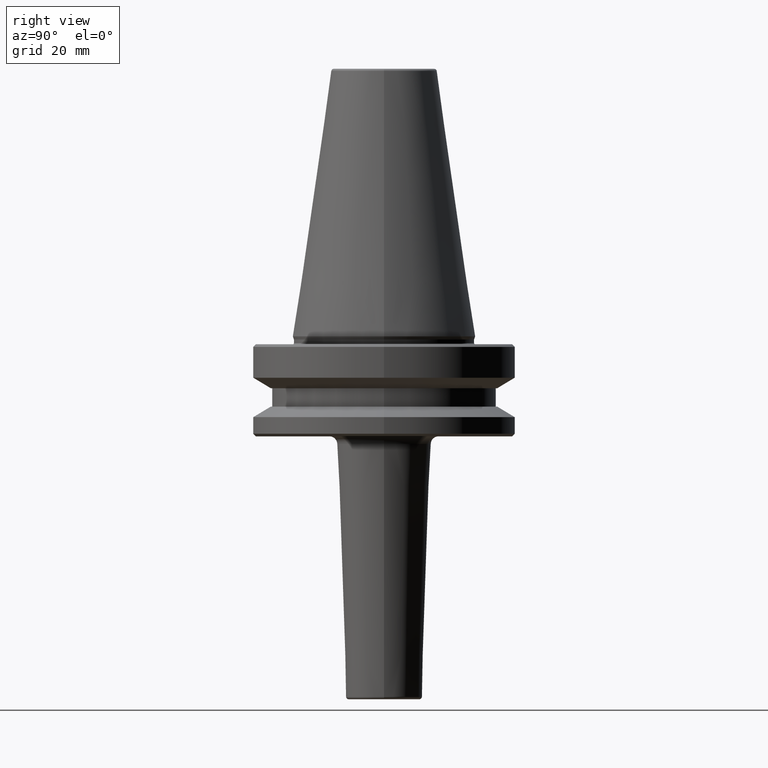
[diagram: clean part render]
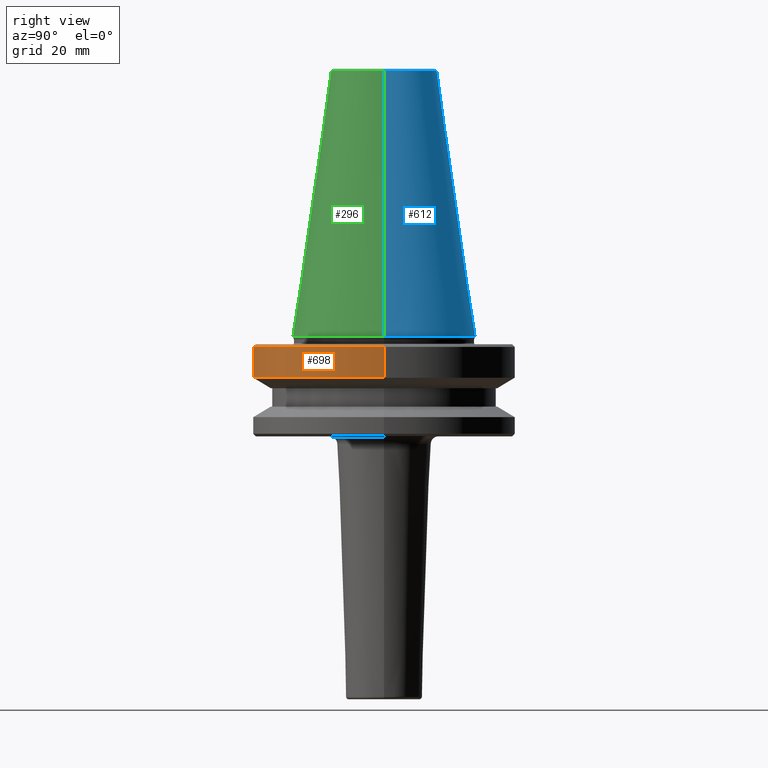
[diagram: same view with three faces highlighted in distinct colors, each labeled with its STEP entity id]
A machine part, right view with three faces highlighted in distinct colors.
Their STEP definitions:

[orange] entity #698 — the highlighted cylindrical surface (partial cylindrical patch) has radius 50 mm, axis along (-0, -0, 1).
#45 = EDGE_CURVE ( 'NONE', #307, #824, #472, .T. ) ;
#54 = CYLINDRICAL_SURFACE ( 'NONE', #357, 50.00000000000000000 ) ;
#61 = CARTESIAN_POINT ( 'NONE',  ( 50.00000000000000000, 0.0000000000000000000, -15.70022000322675400 ) ) ;
#76 = CARTESIAN_POINT ( 'NONE',  ( 0.0000000000000000000, 0.0000000000000000000, 124.5046326327850600 ) ) ;
#85 = ORIENTED_EDGE ( 'NONE', *, *, #708, .F. ) ;
#134 = LINE ( 'NONE', #798, #679 ) ;
#156 = CARTESIAN_POINT ( 'NONE',  ( -50.00000000000000000, 6.123233995736766900E-015, -15.70022000322675400 ) ) ;
#208 = EDGE_CURVE ( 'NONE', #647, #331, #979, .T. ) ;
#219 = DIRECTION ( 'NONE',  ( -0.0000000000000000000, -0.0000000000000000000, 1.000000000000000000 ) ) ;
#227 = FACE_OUTER_BOUND ( 'NONE', #931, .T. ) ;
#289 = ORIENTED_EDGE ( 'NONE', *, *, #45, .T. ) ;
#299 = LINE ( 'NONE', #753, #910 ) ;
#307 = VERTEX_POINT ( 'NONE', #156 ) ;
#318 = CARTESIAN_POINT ( 'NONE',  ( 0.0000000000000000000, 0.0000000000000000000, -3.999999999999989800 ) ) ;
#319 = DIRECTION ( 'NONE',  ( -0.0000000000000000000, -0.0000000000000000000, 1.000000000000000000 ) ) ;
#331 = VERTEX_POINT ( 'NONE', #744 ) ;
#357 = AXIS2_PLACEMENT_3D ( 'NONE', #76, #942, #771 ) ;
#417 = ORIENTED_EDGE ( 'NONE', *, *, #963, .T. ) ;
#472 = CIRCLE ( 'NONE', #562, 50.00000000000000000 ) ;
#475 = DIRECTION ( 'NONE',  ( -0.0000000000000000000, -0.0000000000000000000, 1.000000000000000000 ) ) ;
#545 = AXIS2_PLACEMENT_3D ( 'NONE', #318, #475, #1003 ) ;
#562 = AXIS2_PLACEMENT_3D ( 'NONE', #857, #319, #748 ) ;
#602 = CARTESIAN_POINT ( 'NONE',  ( -50.00000000000000000, 6.123233995736766100E-015, -3.999999999999989800 ) ) ;
#647 = VERTEX_POINT ( 'NONE', #602 ) ;
#679 = VECTOR ( 'NONE', #953, 1000.000000000000000 ) ;
#698 = ADVANCED_FACE ( 'NONE', ( #227 ), #54, .T. ) ;
#708 = EDGE_CURVE ( 'NONE', #307, #647, #299, .T. ) ;
#744 = CARTESIAN_POINT ( 'NONE',  ( 50.00000000000000000, 0.0000000000000000000, -3.999999999999989800 ) ) ;
#748 = DIRECTION ( 'NONE',  ( 1.000000000000000000, 0.0000000000000000000, 0.0000000000000000000 ) ) ;
#753 = CARTESIAN_POINT ( 'NONE',  ( -50.00000000000000000, 6.123233995736766100E-015, 124.5046326327850600 ) ) ;
#771 = DIRECTION ( 'NONE',  ( 1.000000000000000000, 0.0000000000000000000, 0.0000000000000000000 ) ) ;
#798 = CARTESIAN_POINT ( 'NONE',  ( 50.00000000000000000, 0.0000000000000000000, 124.5046326327850600 ) ) ;
#824 = VERTEX_POINT ( 'NONE', #61 ) ;
#857 = CARTESIAN_POINT ( 'NONE',  ( 0.0000000000000000000, 0.0000000000000000000, -15.70022000322675400 ) ) ;
#879 = ORIENTED_EDGE ( 'NONE', *, *, #208, .F. ) ;
#910 = VECTOR ( 'NONE', #219, 1000.000000000000000 ) ;
#931 = EDGE_LOOP ( 'NONE', ( #85, #289, #417, #879 ) ) ;
#942 = DIRECTION ( 'NONE',  ( -0.0000000000000000000, -0.0000000000000000000, 1.000000000000000000 ) ) ;
#953 = DIRECTION ( 'NONE',  ( -0.0000000000000000000, -0.0000000000000000000, 1.000000000000000000 ) ) ;
#963 = EDGE_CURVE ( 'NONE', #824, #331, #134, .T. ) ;
#979 = CIRCLE ( 'NONE', #545, 50.00000000000000000 ) ;
#1003 = DIRECTION ( 'NONE',  ( 1.000000000000000000, 0.0000000000000000000, 0.0000000000000000000 ) ) ;

[blue] entity #612 — the highlighted conical surface has half-angle 8.297 deg.
#9 = DIRECTION ( 'NONE',  ( 0.1443082272673000800, 1.767266086135278300E-017, -0.9895327864921754600 ) ) ;
#17 = EDGE_CURVE ( 'NONE', #168, #212, #304, .T. ) ;
#18 = AXIS2_PLACEMENT_3D ( 'NONE', #223, #674, #146 ) ;
#20 = LINE ( 'NONE', #245, #936 ) ;
#68 = EDGE_CURVE ( 'NONE', #438, #168, #355, .T. ) ;
#79 = ORIENTED_EDGE ( 'NONE', *, *, #810, .T. ) ;
#105 = DIRECTION ( 'NONE',  ( 1.000000000000000000, 0.0000000000000000000, 0.0000000000000000000 ) ) ;
#146 = DIRECTION ( 'NONE',  ( 1.000000000000000000, 0.0000000000000000000, 0.0000000000000000000 ) ) ;
#168 = VERTEX_POINT ( 'NONE', #379 ) ;
#202 = CARTESIAN_POINT ( 'NONE',  ( -34.92499999999999700, 4.277078946022131700E-015, 0.0000000000000000000 ) ) ;
#212 = VERTEX_POINT ( 'NONE', #202 ) ;
#215 = FACE_OUTER_BOUND ( 'NONE', #247, .T. ) ;
#223 = CARTESIAN_POINT ( 'NONE',  ( 0.0000000000000000000, 0.0000000000000000000, 0.0000000000000000000 ) ) ;
#245 = CARTESIAN_POINT ( 'NONE',  ( 34.92499999999999700, 4.277078946022130900E-015, 0.0000000000000000000 ) ) ;
#247 = EDGE_LOOP ( 'NONE', ( #998, #425, #79, #367 ) ) ;
#295 = CARTESIAN_POINT ( 'NONE',  ( 0.0000000000000000000, 0.0000000000000000000, 100.9443082272672900 ) ) ;
#304 = LINE ( 'NONE', #536, #352 ) ;
#351 = CARTESIAN_POINT ( 'NONE',  ( 34.92499999999999700, 0.0000000000000000000, 0.0000000000000000000 ) ) ;
#352 = VECTOR ( 'NONE', #834, 1000.000000000000000 ) ;
#355 = CIRCLE ( 'NONE', #819, 20.20381605152244500 ) ;
#360 = DIRECTION ( 'NONE',  ( 0.0000000000000000000, 0.0000000000000000000, -1.000000000000000000 ) ) ;
#364 = VERTEX_POINT ( 'NONE', #351 ) ;
#367 = ORIENTED_EDGE ( 'NONE', *, *, #17, .F. ) ;
#376 = DIRECTION ( 'NONE',  ( -1.000000000000000000, 0.0000000000000000000, 0.0000000000000000000 ) ) ;
#379 = CARTESIAN_POINT ( 'NONE',  ( -20.20381605152244500, 0.0000000000000000000, 100.9443082272672900 ) ) ;
#425 = ORIENTED_EDGE ( 'NONE', *, *, #554, .T. ) ;
#438 = VERTEX_POINT ( 'NONE', #781 ) ;
#467 = CARTESIAN_POINT ( 'NONE',  ( 0.0000000000000000000, 0.0000000000000000000, 0.0000000000000000000 ) ) ;
#536 = CARTESIAN_POINT ( 'NONE',  ( -34.92499999999999700, 0.0000000000000000000, 0.0000000000000000000 ) ) ;
#554 = EDGE_CURVE ( 'NONE', #438, #364, #20, .T. ) ;
#612 = ADVANCED_FACE ( 'NONE', ( #215 ), #867, .T. ) ;
#674 = DIRECTION ( 'NONE',  ( -0.0000000000000000000, -0.0000000000000000000, 1.000000000000000000 ) ) ;
#714 = AXIS2_PLACEMENT_3D ( 'NONE', #467, #360, #376 ) ;
#781 = CARTESIAN_POINT ( 'NONE',  ( 20.20381605152244500, 3.375666405914009100E-015, 100.9443082272672900 ) ) ;
#810 = EDGE_CURVE ( 'NONE', #364, #212, #937, .T. ) ;
#819 = AXIS2_PLACEMENT_3D ( 'NONE', #295, #890, #105 ) ;
#834 = DIRECTION ( 'NONE',  ( -0.1443082272673000800, 0.0000000000000000000, -0.9895327864921754600 ) ) ;
#867 = CONICAL_SURFACE ( 'NONE', #714, 34.92499999999999700, 0.1448138465474120600 ) ;
#890 = DIRECTION ( 'NONE',  ( -0.0000000000000000000, -0.0000000000000000000, 1.000000000000000000 ) ) ;
#936 = VECTOR ( 'NONE', #9, 1000.000000000000000 ) ;
#937 = CIRCLE ( 'NONE', #18, 34.92499999999999700 ) ;
#998 = ORIENTED_EDGE ( 'NONE', *, *, #68, .F. ) ;

[green] entity #296 — the highlighted conical surface has half-angle 8.297 deg.
#7 = AXIS2_PLACEMENT_3D ( 'NONE', #752, #365, #443 ) ;
#9 = DIRECTION ( 'NONE',  ( 0.1443082272673000800, 1.767266086135278300E-017, -0.9895327864921754600 ) ) ;
#17 = EDGE_CURVE ( 'NONE', #168, #212, #304, .T. ) ;
#20 = LINE ( 'NONE', #245, #936 ) ;
#28 = AXIS2_PLACEMENT_3D ( 'NONE', #767, #841, #739 ) ;
#51 = CIRCLE ( 'NONE', #28, 20.20381605152244500 ) ;
#63 = FACE_OUTER_BOUND ( 'NONE', #788, .T. ) ;
#124 = EDGE_CURVE ( 'NONE', #168, #438, #51, .T. ) ;
#168 = VERTEX_POINT ( 'NONE', #379 ) ;
#190 = DIRECTION ( 'NONE',  ( -0.0000000000000000000, -0.0000000000000000000, 1.000000000000000000 ) ) ;
#202 = CARTESIAN_POINT ( 'NONE',  ( -34.92499999999999700, 4.277078946022131700E-015, 0.0000000000000000000 ) ) ;
#212 = VERTEX_POINT ( 'NONE', #202 ) ;
#245 = CARTESIAN_POINT ( 'NONE',  ( 34.92499999999999700, 4.277078946022130900E-015, 0.0000000000000000000 ) ) ;
#296 = ADVANCED_FACE ( 'NONE', ( #63 ), #639, .T. ) ;
#304 = LINE ( 'NONE', #536, #352 ) ;
#351 = CARTESIAN_POINT ( 'NONE',  ( 34.92499999999999700, 0.0000000000000000000, 0.0000000000000000000 ) ) ;
#352 = VECTOR ( 'NONE', #834, 1000.000000000000000 ) ;
#353 = CARTESIAN_POINT ( 'NONE',  ( 0.0000000000000000000, 0.0000000000000000000, 0.0000000000000000000 ) ) ;
#359 = CIRCLE ( 'NONE', #459, 34.92499999999999700 ) ;
#364 = VERTEX_POINT ( 'NONE', #351 ) ;
#365 = DIRECTION ( 'NONE',  ( 0.0000000000000000000, 0.0000000000000000000, -1.000000000000000000 ) ) ;
#379 = CARTESIAN_POINT ( 'NONE',  ( -20.20381605152244500, 0.0000000000000000000, 100.9443082272672900 ) ) ;
#438 = VERTEX_POINT ( 'NONE', #781 ) ;
#443 = DIRECTION ( 'NONE',  ( -1.000000000000000000, 0.0000000000000000000, 0.0000000000000000000 ) ) ;
#459 = AXIS2_PLACEMENT_3D ( 'NONE', #353, #190, #725 ) ;
#480 = ORIENTED_EDGE ( 'NONE', *, *, #124, .F. ) ;
#536 = CARTESIAN_POINT ( 'NONE',  ( -34.92499999999999700, 0.0000000000000000000, 0.0000000000000000000 ) ) ;
#554 = EDGE_CURVE ( 'NONE', #438, #364, #20, .T. ) ;
#639 = CONICAL_SURFACE ( 'NONE', #7, 34.92499999999999700, 0.1448138465474120600 ) ;
#725 = DIRECTION ( 'NONE',  ( 1.000000000000000000, 0.0000000000000000000, 0.0000000000000000000 ) ) ;
#739 = DIRECTION ( 'NONE',  ( 1.000000000000000000, 0.0000000000000000000, 0.0000000000000000000 ) ) ;
#747 = ORIENTED_EDGE ( 'NONE', *, *, #912, .T. ) ;
#752 = CARTESIAN_POINT ( 'NONE',  ( 0.0000000000000000000, 0.0000000000000000000, 0.0000000000000000000 ) ) ;
#767 = CARTESIAN_POINT ( 'NONE',  ( 0.0000000000000000000, 0.0000000000000000000, 100.9443082272672900 ) ) ;
#781 = CARTESIAN_POINT ( 'NONE',  ( 20.20381605152244500, 3.375666405914009100E-015, 100.9443082272672900 ) ) ;
#788 = EDGE_LOOP ( 'NONE', ( #847, #480, #976, #747 ) ) ;
#834 = DIRECTION ( 'NONE',  ( -0.1443082272673000800, 0.0000000000000000000, -0.9895327864921754600 ) ) ;
#841 = DIRECTION ( 'NONE',  ( -0.0000000000000000000, -0.0000000000000000000, 1.000000000000000000 ) ) ;
#847 = ORIENTED_EDGE ( 'NONE', *, *, #554, .F. ) ;
#912 = EDGE_CURVE ( 'NONE', #212, #364, #359, .T. ) ;
#936 = VECTOR ( 'NONE', #9, 1000.000000000000000 ) ;
#976 = ORIENTED_EDGE ( 'NONE', *, *, #17, .T. ) ;